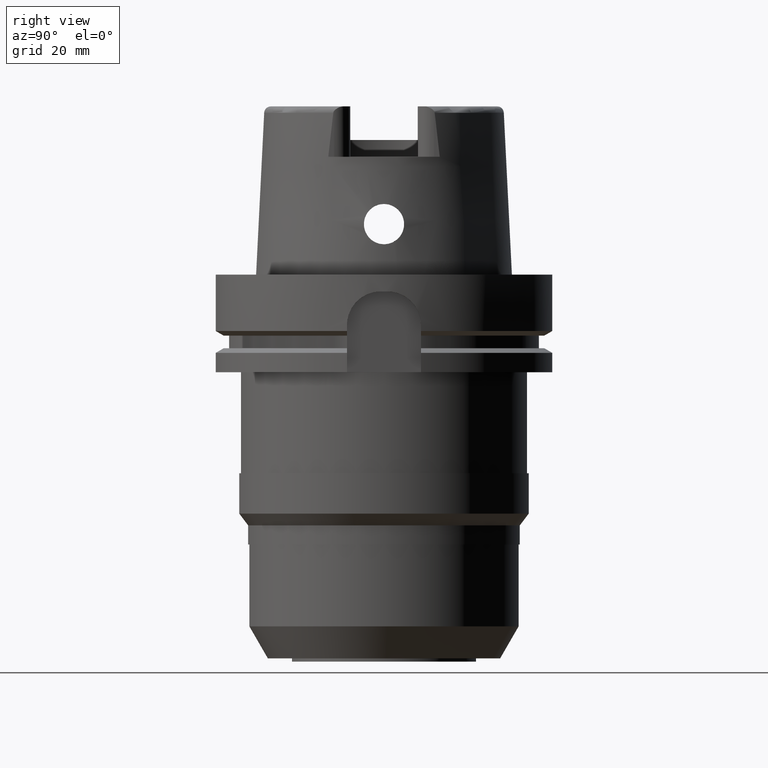
[diagram: clean part render]
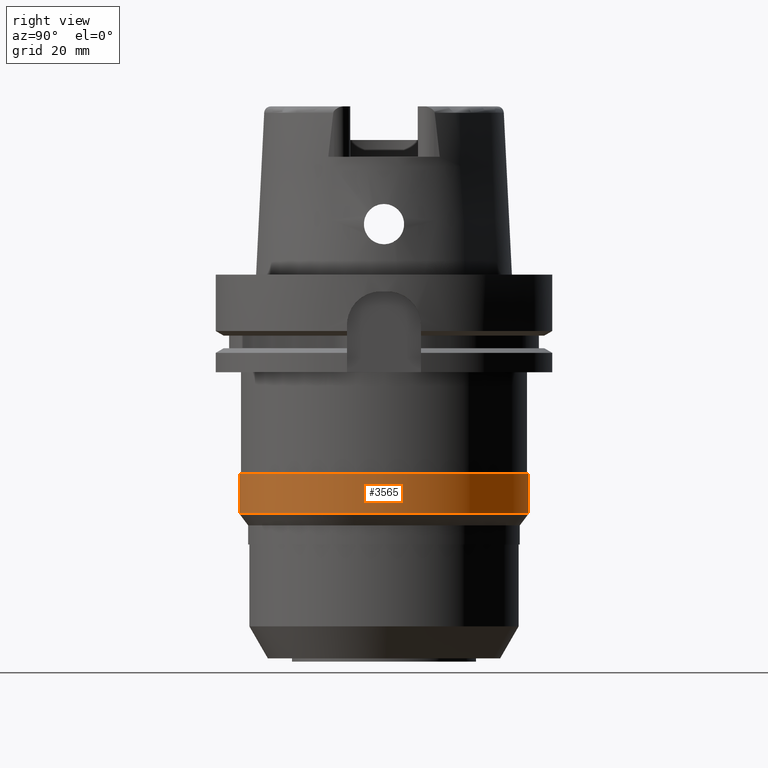
[diagram: same view with one face highlighted and labeled with its STEP entity id]
A machine part, right view. The second image highlights one B-rep face of the part: STEP entity #3565.
In plain terms, the highlighted cylindrical surface (partial cylindrical patch) has radius 43 mm, axis along (0, 0, 1).
Its self-contained STEP definition (entity closure, byte-faithful):
#1223=CARTESIAN_POINT('',(0.E0,0.E0,-7.1E1));
#1224=DIRECTION('',(0.E0,0.E0,1.E0));
#1225=DIRECTION('',(0.E0,-1.E0,0.E0));
#1226=AXIS2_PLACEMENT_3D('',#1223,#1224,#1225);
#1231=DIRECTION('',(0.E0,5.921189464667E-14,-1.E0));
#1232=VECTOR('',#1231,1.2E1);
#1233=CARTESIAN_POINT('',(0.E0,4.3E1,-5.9E1));
#1234=LINE('',#1233,#1232);
#1238=DIRECTION('',(0.E0,-5.921189464667E-14,-1.E0));
#1239=VECTOR('',#1238,1.2E1);
#1240=CARTESIAN_POINT('',(0.E0,-4.3E1,-5.9E1));
#1241=LINE('',#1240,#1239);
#1253=CARTESIAN_POINT('',(0.E0,0.E0,-5.9E1));
#1254=DIRECTION('',(0.E0,0.E0,-1.E0));
#1255=DIRECTION('',(0.E0,1.E0,0.E0));
#1256=AXIS2_PLACEMENT_3D('',#1253,#1254,#1255);
#2492=CARTESIAN_POINT('',(0.E0,4.3E1,-7.1E1));
#2493=VERTEX_POINT('',#2492);
#2494=CARTESIAN_POINT('',(0.E0,-4.3E1,-7.1E1));
#2495=VERTEX_POINT('',#2494);
#2496=CARTESIAN_POINT('',(0.E0,4.3E1,-5.9E1));
#2497=VERTEX_POINT('',#2496);
#2498=CARTESIAN_POINT('',(0.E0,-4.3E1,-5.9E1));
#2499=VERTEX_POINT('',#2498);
#3551=CARTESIAN_POINT('',(0.E0,0.E0,-1.2325E2));
#3552=DIRECTION('',(0.E0,0.E0,1.E0));
#3553=DIRECTION('',(0.E0,1.E0,0.E0));
#3554=AXIS2_PLACEMENT_3D('',#3551,#3552,#3553);
#3555=CYLINDRICAL_SURFACE('',#3554,4.3E1);
#3557=ORIENTED_EDGE('',*,*,#3556,.T.);
#3558=ORIENTED_EDGE('',*,*,#3546,.F.);
#3560=ORIENTED_EDGE('',*,*,#3559,.F.);
#3562=ORIENTED_EDGE('',*,*,#3561,.F.);
#3563=EDGE_LOOP('',(#3557,#3558,#3560,#3562));
#3564=FACE_OUTER_BOUND('',#3563,.F.);
#1227=CIRCLE('',#1226,4.3E1);
#1257=CIRCLE('',#1256,4.3E1);
#3546=EDGE_CURVE('',#2495,#2493,#1227,.T.);
#3556=EDGE_CURVE('',#2497,#2493,#1234,.T.);
#3559=EDGE_CURVE('',#2499,#2495,#1241,.T.);
#3561=EDGE_CURVE('',#2497,#2499,#1257,.T.);
#3565=ADVANCED_FACE('',(#3564),#3555,.T.);